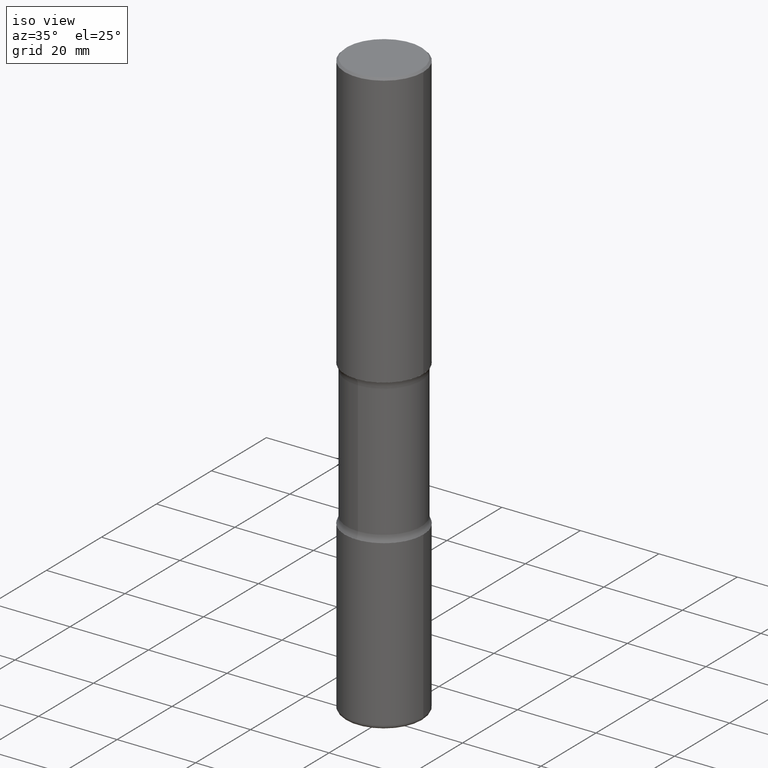
[diagram: clean part render]
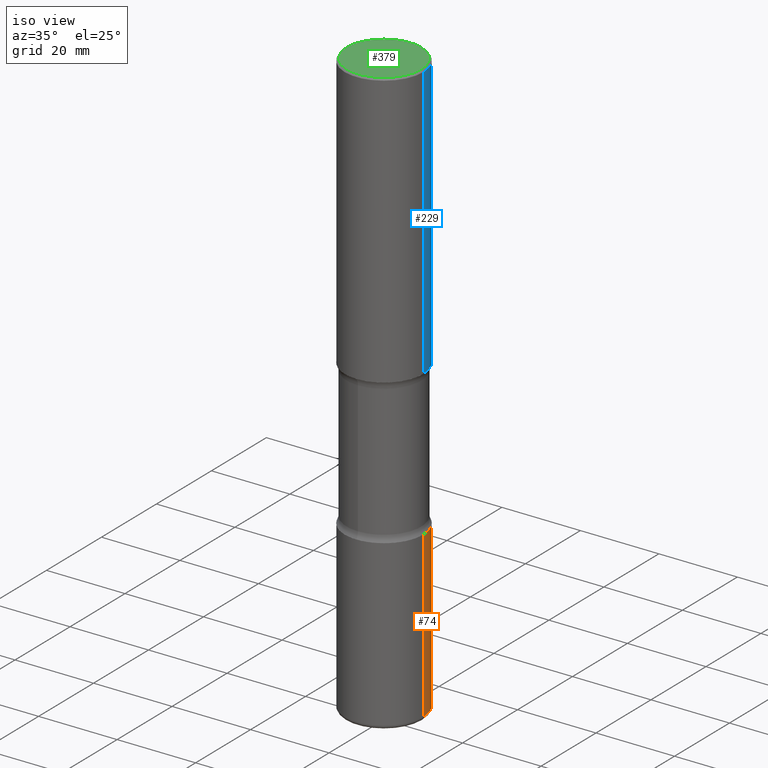
[diagram: same view with three faces highlighted in distinct colors, each labeled with its STEP entity id]
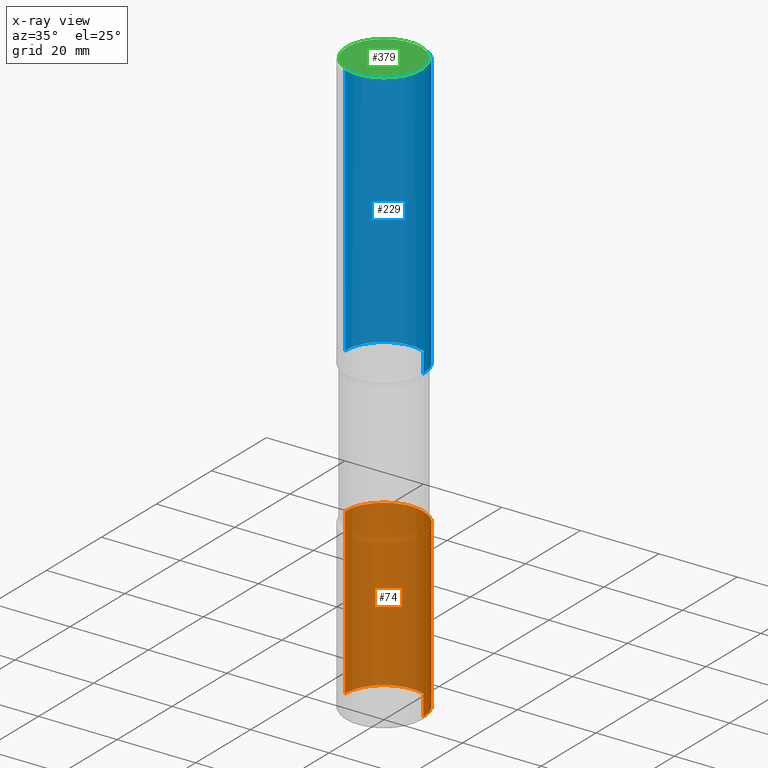
[diagram: x-ray of the same camera — body ghosted, the three highlighted faces saturated]
A machine part, iso view with three faces highlighted in distinct colors.
The next image is the same camera in x-ray (body ghosted, the three faces saturated) — at least one of them is partly hidden behind the body in this view.
Their STEP definitions:

[orange] entity #74 — the highlighted cylindrical surface (partial cylindrical patch) has radius 10 mm, axis along (-0, 0, 1).
#7 = EDGE_CURVE ( 'NONE', #87, #531, #291, .T. ) ;
#20 = DIRECTION ( 'NONE',  ( -2.445468806185136597E-29, 3.491481338843145583E-15, 1.000000000000000000 ) ) ;
#74 = ADVANCED_FACE ( 'NONE', ( #152 ), #380, .T. ) ;
#82 = CARTESIAN_POINT ( 'NONE',  ( 0.3937000000000002164, -2.749192406205084794E-15, 1.919750796630861012E-29 ) ) ;
#87 = VERTEX_POINT ( 'NONE', #307 ) ;
#93 = CARTESIAN_POINT ( 'NONE',  ( -0.3937000000000002720, -1.479738973421168625E-14, -4.212599999999998346 ) ) ;
#114 = DIRECTION ( 'NONE',  ( -2.445468806185136877E-29, 3.491481338843145188E-15, 1.000000000000000000 ) ) ;
#119 = LINE ( 'NONE', #82, #457 ) ;
#130 = VERTEX_POINT ( 'NONE', #93 ) ;
#133 = CIRCLE ( 'NONE', #284, 0.3937000000000002720 ) ;
#152 = FACE_OUTER_BOUND ( 'NONE', #353, .T. ) ;
#165 = AXIS2_PLACEMENT_3D ( 'NONE', #529, #327, #209 ) ;
#172 = ORIENTED_EDGE ( 'NONE', *, *, #7, .T. ) ;
#209 = DIRECTION ( 'NONE',  ( 1.000000000000000000, -6.982962677686266711E-15, 4.876176775795935793E-29 ) ) ;
#247 = CARTESIAN_POINT ( 'NONE',  ( 1.030178189293550378E-28, -1.470821428801063089E-14, -4.212599999999998346 ) ) ;
#259 = ORIENTED_EDGE ( 'NONE', *, *, #372, .F. ) ;
#260 = AXIS2_PLACEMENT_3D ( 'NONE', #318, #20, #534 ) ;
#284 = AXIS2_PLACEMENT_3D ( 'NONE', #247, #424, #471 ) ;
#291 = CIRCLE ( 'NONE', #260, 0.3937000000000002164 ) ;
#307 = CARTESIAN_POINT ( 'NONE',  ( 0.3937000000000004385, -2.323057108799285912E-14, -5.866099999999998538 ) ) ;
#318 = CARTESIAN_POINT ( 'NONE',  ( 1.434536456396262699E-28, -2.048137868178777275E-14, -5.866099999999998538 ) ) ;
#327 = DIRECTION ( 'NONE',  ( -2.445468806185136597E-29, 3.491481338843145583E-15, 1.000000000000000000 ) ) ;
#334 = LINE ( 'NONE', #470, #387 ) ;
#339 = ORIENTED_EDGE ( 'NONE', *, *, #509, .F. ) ;
#353 = EDGE_LOOP ( 'NONE', ( #172, #388, #339, #259 ) ) ;
#372 = EDGE_CURVE ( 'NONE', #87, #540, #119, .T. ) ;
#380 = CYLINDRICAL_SURFACE ( 'NONE', #165, 0.3937000000000002164 ) ;
#387 = VECTOR ( 'NONE', #508, 39.37007874015748143 ) ;
#388 = ORIENTED_EDGE ( 'NONE', *, *, #434, .T. ) ;
#403 = CARTESIAN_POINT ( 'NONE',  ( 0.3937000000000002720, -1.745740669421571411E-14, -4.212599999999998346 ) ) ;
#424 = DIRECTION ( 'NONE',  ( -2.445468806185136597E-29, 3.491481338843145583E-15, 1.000000000000000000 ) ) ;
#434 = EDGE_CURVE ( 'NONE', #531, #130, #334, .T. ) ;
#457 = VECTOR ( 'NONE', #114, 39.37007874015748143 ) ;
#470 = CARTESIAN_POINT ( 'NONE',  ( -0.3937000000000002164, 2.797406750687515970E-15, -1.936584745033357576E-29 ) ) ;
#471 = DIRECTION ( 'NONE',  ( 1.000000000000000000, -6.982962677686269077E-15, 0.000000000000000000 ) ) ;
#508 = DIRECTION ( 'NONE',  ( -2.445468806185136877E-29, 3.491481338843145188E-15, 1.000000000000000000 ) ) ;
#509 = EDGE_CURVE ( 'NONE', #540, #130, #133, .T. ) ;
#529 = CARTESIAN_POINT ( 'NONE',  ( 0.000000000000000000, 0.000000000000000000, 0.000000000000000000 ) ) ;
#531 = VERTEX_POINT ( 'NONE', #555 ) ;
#534 = DIRECTION ( 'NONE',  ( 1.000000000000000000, -6.982962677686265133E-15, 0.000000000000000000 ) ) ;
#540 = VERTEX_POINT ( 'NONE', #403 ) ;
#555 = CARTESIAN_POINT ( 'NONE',  ( -0.3937000000000004385, -1.768397193110025560E-14, -5.866099999999998538 ) ) ;

[blue] entity #229 — the highlighted cylindrical surface (partial cylindrical patch) has radius 10 mm, axis along (-0, 0, 1).
#23 = LINE ( 'NONE', #278, #466 ) ;
#24 = EDGE_LOOP ( 'NONE', ( #235, #305, #109, #251 ) ) ;
#62 = DIRECTION ( 'NONE',  ( 1.000000000000000000, -6.982962677686266711E-15, 4.876176775795935793E-29 ) ) ;
#72 = DIRECTION ( 'NONE',  ( -2.445468806185136597E-29, 3.491481338843145583E-15, 1.000000000000000000 ) ) ;
#75 = CARTESIAN_POINT ( 'NONE',  ( 0.3936999999999999389, -2.770807688499514945E-15, -0.02000000000000010103 ) ) ;
#109 = ORIENTED_EDGE ( 'NONE', *, *, #500, .F. ) ;
#139 = CYLINDRICAL_SURFACE ( 'NONE', #510, 0.3937000000000001054 ) ;
#154 = CARTESIAN_POINT ( 'NONE',  ( 0.3937000000000002164, -1.237136582792290287E-14, -2.755899999999998240 ) ) ;
#155 = CIRCLE ( 'NONE', #492, 0.3936999999999999389 ) ;
#166 = CIRCLE ( 'NONE', #188, 0.3937000000000002164 ) ;
#188 = AXIS2_PLACEMENT_3D ( 'NONE', #425, #72, #469 ) ;
#229 = ADVANCED_FACE ( 'NONE', ( #405 ), #139, .T. ) ;
#235 = ORIENTED_EDGE ( 'NONE', *, *, #409, .T. ) ;
#251 = ORIENTED_EDGE ( 'NONE', *, *, #262, .F. ) ;
#253 = EDGE_CURVE ( 'NONE', #360, #395, #23, .T. ) ;
#262 = EDGE_CURVE ( 'NONE', #462, #373, #324, .T. ) ;
#278 = CARTESIAN_POINT ( 'NONE',  ( -0.3937000000000001054, 2.797406750687515181E-15, -1.936584745033357016E-29 ) ) ;
#305 = ORIENTED_EDGE ( 'NONE', *, *, #253, .T. ) ;
#324 = LINE ( 'NONE', #494, #549 ) ;
#335 = CARTESIAN_POINT ( 'NONE',  ( -0.3936999999999999389, 2.679362779428219524E-15, -0.02000000000000010103 ) ) ;
#338 = DIRECTION ( 'NONE',  ( -2.445468806185136597E-29, 3.491481338843145583E-15, 1.000000000000000000 ) ) ;
#360 = VERTEX_POINT ( 'NONE', #430 ) ;
#373 = VERTEX_POINT ( 'NONE', #75 ) ;
#382 = CARTESIAN_POINT ( 'NONE',  ( 4.890937612370298557E-31, -6.982962677686327354E-17, -0.02000000000000010103 ) ) ;
#395 = VERTEX_POINT ( 'NONE', #335 ) ;
#405 = FACE_OUTER_BOUND ( 'NONE', #24, .T. ) ;
#409 = EDGE_CURVE ( 'NONE', #462, #360, #166, .T. ) ;
#411 = DIRECTION ( 'NONE',  ( -2.445468806185136877E-29, 3.491481338843145188E-15, 1.000000000000000000 ) ) ;
#425 = CARTESIAN_POINT ( 'NONE',  ( 6.739467482965614869E-29, -9.622173421717819657E-15, -2.755899999999998240 ) ) ;
#430 = CARTESIAN_POINT ( 'NONE',  ( -0.3937000000000002720, -2.048594773559823141E-15, -2.755899999999998240 ) ) ;
#449 = DIRECTION ( 'NONE',  ( -2.445468806185136597E-29, 3.491481338843145583E-15, 1.000000000000000000 ) ) ;
#459 = DIRECTION ( 'NONE',  ( -2.445468806185136877E-29, 3.491481338843145188E-15, 1.000000000000000000 ) ) ;
#462 = VERTEX_POINT ( 'NONE', #154 ) ;
#464 = DIRECTION ( 'NONE',  ( 1.000000000000000000, -6.982962677686266711E-15, 0.000000000000000000 ) ) ;
#466 = VECTOR ( 'NONE', #411, 39.37007874015748143 ) ;
#469 = DIRECTION ( 'NONE',  ( 1.000000000000000000, -6.982962677686265133E-15, 0.000000000000000000 ) ) ;
#492 = AXIS2_PLACEMENT_3D ( 'NONE', #382, #338, #464 ) ;
#494 = CARTESIAN_POINT ( 'NONE',  ( 0.3937000000000001054, -2.749192406205084005E-15, 1.919750796630860452E-29 ) ) ;
#500 = EDGE_CURVE ( 'NONE', #373, #395, #155, .T. ) ;
#510 = AXIS2_PLACEMENT_3D ( 'NONE', #541, #449, #62 ) ;
#541 = CARTESIAN_POINT ( 'NONE',  ( 0.000000000000000000, 0.000000000000000000, 0.000000000000000000 ) ) ;
#549 = VECTOR ( 'NONE', #459, 39.37007874015748143 ) ;

[green] entity #379 — the highlighted planar face has unit normal (0, -0, -1).
#21 = CARTESIAN_POINT ( 'NONE',  ( -0.3736999999999999211, 2.644447966039788269E-15, 8.537024980182450727E-18 ) ) ;
#39 = EDGE_CURVE ( 'NONE', #476, #450, #214, .T. ) ;
#46 = AXIS2_PLACEMENT_3D ( 'NONE', #183, #415, #363 ) ;
#79 = DIRECTION ( 'NONE',  ( 2.438088387897960049E-29, -3.491481338843145188E-15, -1.000000000000000000 ) ) ;
#112 = ORIENTED_EDGE ( 'NONE', *, *, #39, .T. ) ;
#120 = CARTESIAN_POINT ( 'NONE',  ( 2.609533152651356620E-15, 0.3736999999999999211, -1.300498063835582814E-15 ) ) ;
#183 = CARTESIAN_POINT ( 'NONE',  ( -2.087702828670439639E-46, 2.980686340760894400E-32, 8.537024980200822558E-18 ) ) ;
#208 = AXIS2_PLACEMENT_3D ( 'NONE', #120, #79, #386 ) ;
#210 = CIRCLE ( 'NONE', #225, 0.3736999999999999211 ) ;
#214 = CIRCLE ( 'NONE', #46, 0.3736999999999999211 ) ;
#220 = EDGE_CURVE ( 'NONE', #450, #476, #210, .T. ) ;
#225 = AXIS2_PLACEMENT_3D ( 'NONE', #374, #361, #414 ) ;
#252 = FACE_OUTER_BOUND ( 'NONE', #377, .T. ) ;
#351 = ORIENTED_EDGE ( 'NONE', *, *, #220, .T. ) ;
#361 = DIRECTION ( 'NONE',  ( -2.445468806185136597E-29, 3.491481338843145583E-15, 1.000000000000000000 ) ) ;
#363 = DIRECTION ( 'NONE',  ( 1.000000000000000000, -6.982962677686266711E-15, 4.876212485538976239E-29 ) ) ;
#374 = CARTESIAN_POINT ( 'NONE',  ( -2.087702828670439639E-46, 2.980686340760894400E-32, 8.537024980200822558E-18 ) ) ;
#376 = PLANE ( 'NONE',  #208 ) ;
#377 = EDGE_LOOP ( 'NONE', ( #112, #351 ) ) ;
#379 = ADVANCED_FACE ( 'NONE', ( #252 ), #376, .F. ) ;
#386 = DIRECTION ( 'NONE',  ( -1.000000000000000000, 6.982962677686265922E-15, -4.876176775795935793E-29 ) ) ;
#414 = DIRECTION ( 'NONE',  ( 1.000000000000000000, -6.982962677686266711E-15, 4.876212485538976239E-29 ) ) ;
#415 = DIRECTION ( 'NONE',  ( -2.445468806185136597E-29, 3.491481338843145583E-15, 1.000000000000000000 ) ) ;
#450 = VERTEX_POINT ( 'NONE', #546 ) ;
#476 = VERTEX_POINT ( 'NONE', #21 ) ;
#546 = CARTESIAN_POINT ( 'NONE',  ( 0.3736999999999999211, -2.667287895133367964E-15, 8.537024980219274507E-18 ) ) ;